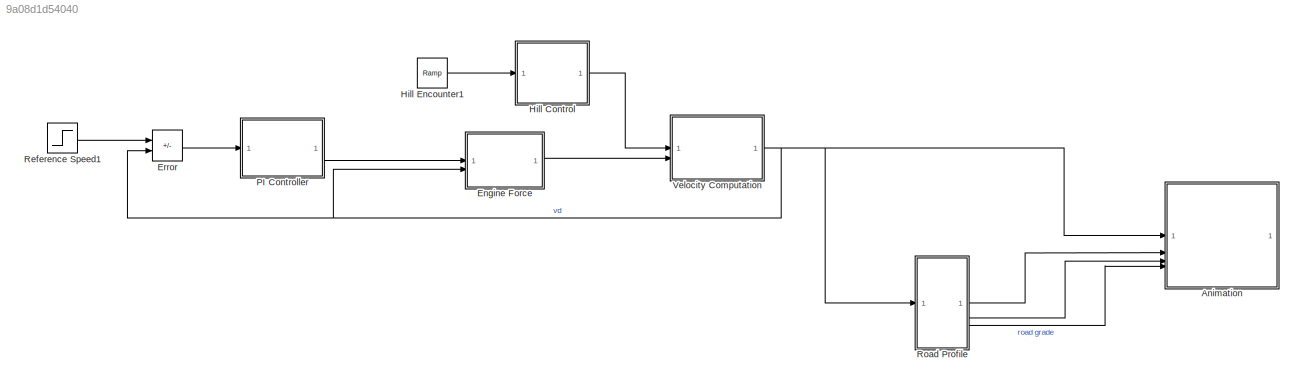
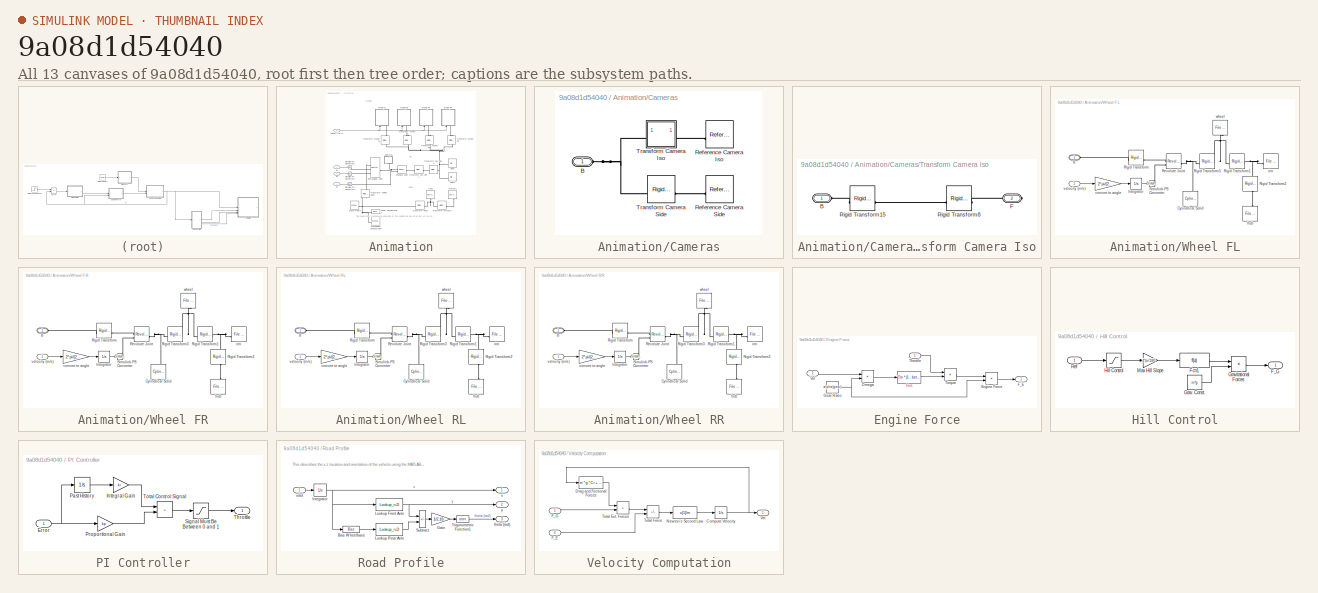
[diagram: thumbnail index - all 13 canvases of the model, root first then tree order]
MODEL slx_9a08d1d54040
KIND model
CONFIG AbsTol = auto
CONFIG EnableMultiTasking = off
CONFIG FixedStep = auto
CONFIG InitFcn = % Initialization code section\n%Control Parameters:\nA=2.4;\nalpha=[40,25,16,12,10];\nbeta=0.4;\nCd=0.32;\nCr=0.01;\ng=9.8;\ngear=3;\nrho=1.3;\ntheta=0;\nTm=190;\nwm=420;\n\n\n%Animation Parameters:\nL = 1000; % Track length (meters)\nR = 40; % Transition radious (meters)\n% ext = 600; % Extra at the end\ndepth = 0.25; % Road depth (meters)\nN = 10e3;\ngrade = deg2rad(30);\n\nroadw = 5; % road width (m)\n\nmarkerFreq = 20...<+862ch>
CONFIG MaxStep = auto
CONFIG MinStep = auto
CONFIG RelTol = 1e-3
CONFIG SampleTimeConstraint = Unconstrained
CONFIG SolverName = VariableStepAuto
CONFIG StartTime = 0.0
CONFIG StopTime = 10
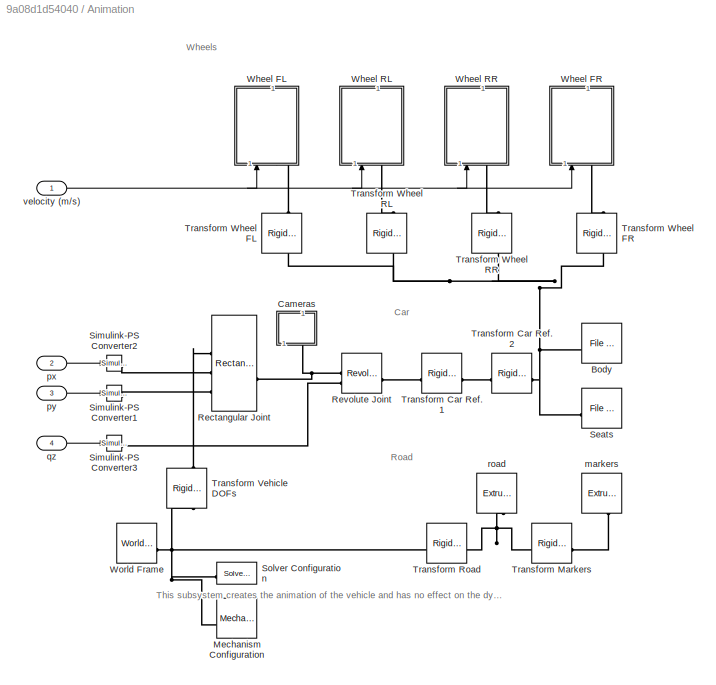
BLOCK [SubSystem] Animation
BLOCK [Reference] Animation/Body  REF=sm_lib/Body Elements/File Solid
  SourceBlock = sm_lib/Body Elements/File Solid
  SourceType = File Solid
BLOCK [SubSystem] Animation/Cameras
  NameLocation = right
BLOCK [PMIOPort] Animation/Cameras/B
  Side = Left
BLOCK [Reference] Animation/Cameras/Reference Camera Iso  REF=sm_lib/Frames and
Transforms/Reference
Frame
  Commented = on
  SourceBlock = sm_lib/Frames and\nTransforms/Reference\nFrame
  SourceType = Reference\nFrame
BLOCK [Reference] Animation/Cameras/Reference Camera Side  REF=sm_lib/Frames and
Transforms/Reference
Frame
  SourceBlock = sm_lib/Frames and\nTransforms/Reference\nFrame
  SourceType = Reference\nFrame
BLOCK [SubSystem] Animation/Cameras/Transform Camera Iso
  Commented = on
BLOCK [PMIOPort] Animation/Cameras/Transform Camera Iso/B
  Side = Left
BLOCK [PMIOPort] Animation/Cameras/Transform Camera Iso/F
  Port = 2
  Side = Right
BLOCK [Reference] Animation/Cameras/Transform Camera Iso/Rigid Transform15  REF=sm_lib/Frames and
Transforms/Rigid
Transform
  SourceBlock = sm_lib/Frames and\nTransforms/Rigid\nTransform
  SourceType = Rigid\nTransform
BLOCK [Reference] Animation/Cameras/Transform Camera Iso/Rigid Transform8  REF=sm_lib/Frames and
Transforms/Rigid
Transform
  SourceBlock = sm_lib/Frames and\nTransforms/Rigid\nTransform
  SourceType = Rigid\nTransform
BLOCK [Reference] Animation/Cameras/Transform Camera Side  REF=sm_lib/Frames and
Transforms/Rigid
Transform
  SourceBlock = sm_lib/Frames and\nTransforms/Rigid\nTransform
  SourceType = Rigid\nTransform
BLOCK [Reference] Animation/Mechanism Configuration  REF=sm_lib/Utilities/Mechanism
Configuration
  NameLocation = right
  SourceBlock = sm_lib/Utilities/Mechanism\nConfiguration
  SourceType = Mechanism\nConfiguration
BLOCK [Reference] Animation/Rectangular Joint  REF=sm_lib/Joints/Rectangular
Joint
  SourceBlock = sm_lib/Joints/Rectangular\nJoint
  SourceType = Rectangular\nJoint
BLOCK [Reference] Animation/Revolute Joint  REF=sm_lib/Joints/Revolute Joint
  SourceBlock = sm_lib/Joints/Revolute Joint
  SourceType = Revolute Joint
BLOCK [Reference] Animation/Seats  REF=sm_lib/Body Elements/File Solid
  SourceBlock = sm_lib/Body Elements/File Solid
  SourceType = File Solid
BLOCK [Reference] Animation/Simulink-PS Converter1  REF=nesl_utility/Simulink-PS
Converter
  SourceBlock = nesl_utility/Simulink-PS\nConverter
  SourceType = Simulink-PS\nConverter
BLOCK [Reference] Animation/Simulink-PS Converter2  REF=nesl_utility/Simulink-PS
Converter
  SourceBlock = nesl_utility/Simulink-PS\nConverter
  SourceType = Simulink-PS\nConverter
BLOCK [Reference] Animation/Simulink-PS Converter3  REF=nesl_utility/Simulink-PS
Converter
  SourceBlock = nesl_utility/Simulink-PS\nConverter
  SourceType = Simulink-PS\nConverter
BLOCK [Reference] Animation/Solver Configuration  REF=nesl_utility/Solver
Configuration
  NameLocation = right
  SourceBlock = nesl_utility/Solver\nConfiguration
  SourceType = Solver\nConfiguration
BLOCK [Reference] Animation/Transform Car Ref. 1  REF=sm_lib/Frames and
Transforms/Rigid
Transform
  SourceBlock = sm_lib/Frames and\nTransforms/Rigid\nTransform
  SourceType = Rigid\nTransform
BLOCK [Reference] Animation/Transform Car Ref. 2  REF=sm_lib/Frames and
Transforms/Rigid
Transform
  SourceBlock = sm_lib/Frames and\nTransforms/Rigid\nTransform
  SourceType = Rigid\nTransform
BLOCK [Reference] Animation/Transform Markers  REF=sm_lib/Frames and
Transforms/Rigid
Transform
  SourceBlock = sm_lib/Frames and\nTransforms/Rigid\nTransform
  SourceType = Rigid\nTransform
BLOCK [Reference] Animation/Transform Road  REF=sm_lib/Frames and
Transforms/Rigid
Transform
  SourceBlock = sm_lib/Frames and\nTransforms/Rigid\nTransform
  SourceType = Rigid\nTransform
BLOCK [Reference] Animation/Transform Vehicle DOFs  REF=sm_lib/Frames and
Transforms/Rigid
Transform
  NameLocation = left
  SourceBlock = sm_lib/Frames and\nTransforms/Rigid\nTransform
  SourceType = Rigid\nTransform
BLOCK [Reference] Animation/Transform Wheel FL  REF=sm_lib/Frames and
Transforms/Rigid
Transform
  NameLocation = left
  SourceBlock = sm_lib/Frames and\nTransforms/Rigid\nTransform
  SourceType = Rigid\nTransform
BLOCK [Reference] Animation/Transform Wheel FR  REF=sm_lib/Frames and
Transforms/Rigid
Transform
  NameLocation = left
  SourceBlock = sm_lib/Frames and\nTransforms/Rigid\nTransform
  SourceType = Rigid\nTransform
BLOCK [Reference] Animation/Transform Wheel RL  REF=sm_lib/Frames and
Transforms/Rigid
Transform
  NameLocation = left
  SourceBlock = sm_lib/Frames and\nTransforms/Rigid\nTransform
  SourceType = Rigid\nTransform
BLOCK [Reference] Animation/Transform Wheel RR  REF=sm_lib/Frames and
Transforms/Rigid
Transform
  NameLocation = left
  SourceBlock = sm_lib/Frames and\nTransforms/Rigid\nTransform
  SourceType = Rigid\nTransform
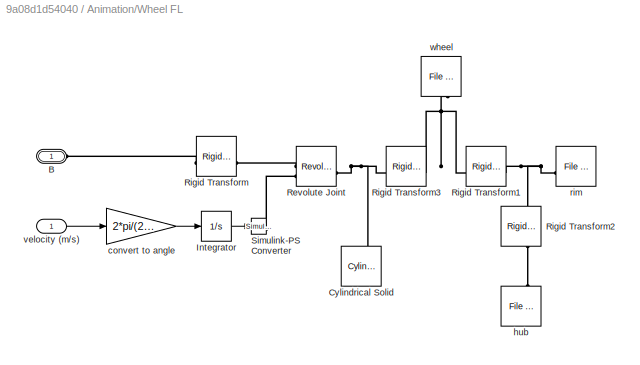
BLOCK [SubSystem] Animation/Wheel FL
  NameLocation = top
BLOCK [PMIOPort] Animation/Wheel FL/B
  Side = Left
BLOCK [Reference] Animation/Wheel FL/Cylindrical Solid  REF=sm_lib/Body Elements/Cylindrical Solid
  NameLocation = right
  SourceBlock = sm_lib/Body Elements/Cylindrical Solid
  SourceType = Cylindrical Solid
BLOCK [Integrator] Animation/Wheel FL/Integrator
BLOCK [Reference] Animation/Wheel FL/Revolute Joint  REF=sm_lib/Joints/Revolute Joint
  SourceBlock = sm_lib/Joints/Revolute Joint
  SourceType = Revolute Joint
BLOCK [Reference] Animation/Wheel FL/Rigid Transform  REF=sm_lib/Frames and
Transforms/Rigid
Transform
  NameLocation = top
  SourceBlock = sm_lib/Frames and\nTransforms/Rigid\nTransform
  SourceType = Rigid\nTransform
BLOCK [Reference] Animation/Wheel FL/Rigid Transform1  REF=sm_lib/Frames and
Transforms/Rigid
Transform
  SourceBlock = sm_lib/Frames and\nTransforms/Rigid\nTransform
  SourceType = Rigid\nTransform
BLOCK [Reference] Animation/Wheel FL/Rigid Transform2  REF=sm_lib/Frames and
Transforms/Rigid
Transform
  NameLocation = left
  SourceBlock = sm_lib/Frames and\nTransforms/Rigid\nTransform
  SourceType = Rigid\nTransform
BLOCK [Reference] Animation/Wheel FL/Rigid Transform3  REF=sm_lib/Frames and
Transforms/Rigid
Transform
  SourceBlock = sm_lib/Frames and\nTransforms/Rigid\nTransform
  SourceType = Rigid\nTransform
BLOCK [Reference] Animation/Wheel FL/Simulink-PS Converter  REF=nesl_utility/Simulink-PS
Converter
  SourceBlock = nesl_utility/Simulink-PS\nConverter
  SourceType = Simulink-PS\nConverter
BLOCK [Gain] Animation/Wheel FL/convert to angle
  Gain = 2*pi/(2.18)
BLOCK [Reference] Animation/Wheel FL/hub  REF=sm_lib/Body Elements/File Solid
  NameLocation = left
  SourceBlock = sm_lib/Body Elements/File Solid
  SourceType = File Solid
BLOCK [Reference] Animation/Wheel FL/rim  REF=sm_lib/Body Elements/File Solid
  NameLocation = right
  SourceBlock = sm_lib/Body Elements/File Solid
  SourceType = File Solid
BLOCK [Inport] Animation/Wheel FL/velocity (m//s)
BLOCK [Reference] Animation/Wheel FL/wheel  REF=sm_lib/Body Elements/File Solid
  NameLocation = top
  SourceBlock = sm_lib/Body Elements/File Solid
  SourceType = File Solid
BLOCK [SubSystem] Animation/Wheel FR
  NameLocation = top
BLOCK [PMIOPort] Animation/Wheel FR/B
  Side = Left
BLOCK [Reference] Animation/Wheel FR/Cylindrical Solid  REF=sm_lib/Body Elements/Cylindrical Solid
  NameLocation = right
  SourceBlock = sm_lib/Body Elements/Cylindrical Solid
  SourceType = Cylindrical Solid
BLOCK [Integrator] Animation/Wheel FR/Integrator
BLOCK [Reference] Animation/Wheel FR/Revolute Joint  REF=sm_lib/Joints/Revolute Joint
  SourceBlock = sm_lib/Joints/Revolute Joint
  SourceType = Revolute Joint
BLOCK [Reference] Animation/Wheel FR/Rigid Transform  REF=sm_lib/Frames and
Transforms/Rigid
Transform
  NameLocation = top
  SourceBlock = sm_lib/Frames and\nTransforms/Rigid\nTransform
  SourceType = Rigid\nTransform
BLOCK [Reference] Animation/Wheel FR/Rigid Transform1  REF=sm_lib/Frames and
Transforms/Rigid
Transform
  SourceBlock = sm_lib/Frames and\nTransforms/Rigid\nTransform
  SourceType = Rigid\nTransform
BLOCK [Reference] Animation/Wheel FR/Rigid Transform2  REF=sm_lib/Frames and
Transforms/Rigid
Transform
  NameLocation = left
  SourceBlock = sm_lib/Frames and\nTransforms/Rigid\nTransform
  SourceType = Rigid\nTransform
BLOCK [Reference] Animation/Wheel FR/Rigid Transform3  REF=sm_lib/Frames and
Transforms/Rigid
Transform
  SourceBlock = sm_lib/Frames and\nTransforms/Rigid\nTransform
  SourceType = Rigid\nTransform
BLOCK [Reference] Animation/Wheel FR/Simulink-PS Converter  REF=nesl_utility/Simulink-PS
Converter
  SourceBlock = nesl_utility/Simulink-PS\nConverter
  SourceType = Simulink-PS\nConverter
BLOCK [Gain] Animation/Wheel FR/convert to angle
  Gain = 2*pi/(2.18)
BLOCK [Reference] Animation/Wheel FR/hub  REF=sm_lib/Body Elements/File Solid
  NameLocation = left
  SourceBlock = sm_lib/Body Elements/File Solid
  SourceType = File Solid
BLOCK [Reference] Animation/Wheel FR/rim  REF=sm_lib/Body Elements/File Solid
  NameLocation = right
  SourceBlock = sm_lib/Body Elements/File Solid
  SourceType = File Solid
BLOCK [Inport] Animation/Wheel FR/velocity (m//s)
BLOCK [Reference] Animation/Wheel FR/wheel  REF=sm_lib/Body Elements/File Solid
  NameLocation = top
  SourceBlock = sm_lib/Body Elements/File Solid
  SourceType = File Solid
BLOCK [SubSystem] Animation/Wheel RL
  NameLocation = top
BLOCK [PMIOPort] Animation/Wheel RL/B
  Side = Left
BLOCK [Reference] Animation/Wheel RL/Cylindrical Solid  REF=sm_lib/Body Elements/Cylindrical Solid
  NameLocation = right
  SourceBlock = sm_lib/Body Elements/Cylindrical Solid
  SourceType = Cylindrical Solid
BLOCK [Integrator] Animation/Wheel RL/Integrator
BLOCK [Reference] Animation/Wheel RL/Revolute Joint  REF=sm_lib/Joints/Revolute Joint
  SourceBlock = sm_lib/Joints/Revolute Joint
  SourceType = Revolute Joint
BLOCK [Reference] Animation/Wheel RL/Rigid Transform  REF=sm_lib/Frames and
Transforms/Rigid
Transform
  NameLocation = top
  SourceBlock = sm_lib/Frames and\nTransforms/Rigid\nTransform
  SourceType = Rigid\nTransform
BLOCK [Reference] Animation/Wheel RL/Rigid Transform1  REF=sm_lib/Frames and
Transforms/Rigid
Transform
  SourceBlock = sm_lib/Frames and\nTransforms/Rigid\nTransform
  SourceType = Rigid\nTransform
BLOCK [Reference] Animation/Wheel RL/Rigid Transform2  REF=sm_lib/Frames and
Transforms/Rigid
Transform
  NameLocation = left
  SourceBlock = sm_lib/Frames and\nTransforms/Rigid\nTransform
  SourceType = Rigid\nTransform
BLOCK [Reference] Animation/Wheel RL/Rigid Transform3  REF=sm_lib/Frames and
Transforms/Rigid
Transform
  SourceBlock = sm_lib/Frames and\nTransforms/Rigid\nTransform
  SourceType = Rigid\nTransform
BLOCK [Reference] Animation/Wheel RL/Simulink-PS Converter  REF=nesl_utility/Simulink-PS
Converter
  SourceBlock = nesl_utility/Simulink-PS\nConverter
  SourceType = Simulink-PS\nConverter
BLOCK [Gain] Animation/Wheel RL/convert to angle
  Gain = 2*pi/(2.18)
BLOCK [Reference] Animation/Wheel RL/hub  REF=sm_lib/Body Elements/File Solid
  NameLocation = left
  SourceBlock = sm_lib/Body Elements/File Solid
  SourceType = File Solid
BLOCK [Reference] Animation/Wheel RL/rim  REF=sm_lib/Body Elements/File Solid
  NameLocation = right
  SourceBlock = sm_lib/Body Elements/File Solid
  SourceType = File Solid
BLOCK [Inport] Animation/Wheel RL/velocity (m//s)
BLOCK [Reference] Animation/Wheel RL/wheel  REF=sm_lib/Body Elements/File Solid
  NameLocation = top
  SourceBlock = sm_lib/Body Elements/File Solid
  SourceType = File Solid
BLOCK [SubSystem] Animation/Wheel RR
  NameLocation = top
BLOCK [PMIOPort] Animation/Wheel RR/B
  Side = Left
BLOCK [Reference] Animation/Wheel RR/Cylindrical Solid  REF=sm_lib/Body Elements/Cylindrical Solid
  NameLocation = right
  SourceBlock = sm_lib/Body Elements/Cylindrical Solid
  SourceType = Cylindrical Solid
BLOCK [Integrator] Animation/Wheel RR/Integrator
BLOCK [Reference] Animation/Wheel RR/Revolute Joint  REF=sm_lib/Joints/Revolute Joint
  SourceBlock = sm_lib/Joints/Revolute Joint
  SourceType = Revolute Joint
BLOCK [Reference] Animation/Wheel RR/Rigid Transform  REF=sm_lib/Frames and
Transforms/Rigid
Transform
  NameLocation = top
  SourceBlock = sm_lib/Frames and\nTransforms/Rigid\nTransform
  SourceType = Rigid\nTransform
BLOCK [Reference] Animation/Wheel RR/Rigid Transform1  REF=sm_lib/Frames and
Transforms/Rigid
Transform
  SourceBlock = sm_lib/Frames and\nTransforms/Rigid\nTransform
  SourceType = Rigid\nTransform
BLOCK [Reference] Animation/Wheel RR/Rigid Transform2  REF=sm_lib/Frames and
Transforms/Rigid
Transform
  NameLocation = left
  SourceBlock = sm_lib/Frames and\nTransforms/Rigid\nTransform
  SourceType = Rigid\nTransform
BLOCK [Reference] Animation/Wheel RR/Rigid Transform3  REF=sm_lib/Frames and
Transforms/Rigid
Transform
  SourceBlock = sm_lib/Frames and\nTransforms/Rigid\nTransform
  SourceType = Rigid\nTransform
BLOCK [Reference] Animation/Wheel RR/Simulink-PS Converter  REF=nesl_utility/Simulink-PS
Converter
  SourceBlock = nesl_utility/Simulink-PS\nConverter
  SourceType = Simulink-PS\nConverter
BLOCK [Gain] Animation/Wheel RR/convert to angle
  Gain = 2*pi/(2.18)
BLOCK [Reference] Animation/Wheel RR/hub  REF=sm_lib/Body Elements/File Solid
  NameLocation = left
  SourceBlock = sm_lib/Body Elements/File Solid
  SourceType = File Solid
BLOCK [Reference] Animation/Wheel RR/rim  REF=sm_lib/Body Elements/File Solid
  NameLocation = right
  SourceBlock = sm_lib/Body Elements/File Solid
  SourceType = File Solid
BLOCK [Inport] Animation/Wheel RR/velocity (m//s)
BLOCK [Reference] Animation/Wheel RR/wheel  REF=sm_lib/Body Elements/File Solid
  NameLocation = top
  SourceBlock = sm_lib/Body Elements/File Solid
  SourceType = File Solid
BLOCK [Reference] Animation/World Frame  REF=sm_lib/Frames and
Transforms/World Frame
  SourceBlock = sm_lib/Frames and\nTransforms/World Frame
  SourceType = World Frame
BLOCK [Reference] Animation/markers  REF=sm_lib/Body Elements/Extruded Solid
  NameLocation = left
  SourceBlock = sm_lib/Body Elements/Extruded Solid
  SourceType = Extruded Solid
BLOCK [Inport] Animation/px
  Port = 2
BLOCK [Inport] Animation/py
  Port = 3
BLOCK [Inport] Animation/qz
  Port = 4
BLOCK [Reference] Animation/road  REF=sm_lib/Body Elements/Extruded Solid
  NameLocation = left
  SourceBlock = sm_lib/Body Elements/Extruded Solid
  SourceType = Extruded Solid
BLOCK [Inport] Animation/velocity (m//s)
BLOCK [SubSystem] Engine Force
BLOCK [Product] Engine Force/Engine Force
  Inputs = **
BLOCK [Outport] Engine Force/F_E
BLOCK [Fcn] Engine Force/Fcn
  Expr = Tm * (1 - beta * (u[1]/wm - 1)^2)
BLOCK [Constant] Engine Force/Gear Ratio
  Value = alpha(gear)
BLOCK [Product] Engine Force/Omega
  RndMeth = Zero
BLOCK [Inport] Engine Force/Throttle
BLOCK [Product] Engine Force/Torque
  RndMeth = Zero
BLOCK [Inport] Engine Force/Vel
  Port = 2
BLOCK [Sum] Error
  IconShape = rectangular
  Inputs = +-
BLOCK [SubSystem] Hill Control
BLOCK [Outport] Hill Control/F_G
BLOCK [Fcn] Hill Control/Fcn1
BLOCK [Constant] Hill Control/Grav. Const.
  Value = m*g
BLOCK [Product] Hill Control/Gravitational Forces
  RndMeth = Zero
BLOCK [Saturate] Hill Control/Hill Control
  LowerLimit = 0
  UpperLimit = 1
BLOCK [Gain] Hill Control/Max Hill Slope
  Gain = 4*pi/180
BLOCK [Inport] Hill Control/Ref
BLOCK [Reference] Hill Encounter1  REF=simulink/Sources/Ramp
  SourceBlock = simulink/Sources/Ramp
  SourceType = Ramp
BLOCK [SubSystem] PI Controller
BLOCK [Inport] PI Controller/Error
BLOCK [Gain] PI Controller/Integral Gain
  Gain = ki
BLOCK [Integrator] PI Controller/Past History
  InitialCondition = 1
BLOCK [Gain] PI Controller/Proportional Gain
  Gain = kp
BLOCK [Saturate] PI Controller/Signal Must Be Between 0 and 1
  LowerLimit = 0
  UpperLimit = 1
BLOCK [Outport] PI Controller/Throttle
BLOCK [Sum] PI Controller/Total Control Signal
  IconShape = rectangular
BLOCK [Step] Reference Speed1
  After = 30
  Before = 20
  SampleTime = 0
  Time = 20
BLOCK [SubSystem] Road Profile
BLOCK [Bias] Road Profile/Bias Wheelbase
  Bias = -2.18
  SaturateOnIntegerOverflow = off
BLOCK [Gain] Road Profile/Gain
  Gain = 1/2.18
BLOCK [Integrator] Road Profile/Integrator
BLOCK [Lookup_n-D] Road Profile/Lookup Front Axle
  BreakpointsForDimension1 = xc
  InputPortMap = u0
  InternalRulePriority = Speed
  NumberOfTableDimensions = 1
  RndMeth = Simplest
  Table = yc
BLOCK [Lookup_n-D] Road Profile/Lookup Rear Axle
  BreakpointsForDimension1 = xc
  InputPortMap = u0
  InternalRulePriority = Speed
  NumberOfTableDimensions = 1
  RndMeth = Simplest
  Table = yc
BLOCK [Sum] Road Profile/Subtract
  IconShape = rectangular
  Inputs = +-
BLOCK [Trigonometry] Road Profile/Trigonometric Function1
  Operator = atan
BLOCK [Outport] Road Profile/theta (rad)
  Port = 3
BLOCK [Outport] Road Profile/x
BLOCK [Inport] Road Profile/xdot
BLOCK [Outport] Road Profile/y
  Port = 2
BLOCK [SubSystem] Velocity Computation
BLOCK [Integrator] Velocity Computation/Compute Velocity
  InitialCondition = 20
BLOCK [Fcn] Velocity Computation/Drag and Frictional Forces
  Expr = m * g * Cr + 0.5 * rho * Cd * A * (u[1])^2
BLOCK [Inport] Velocity Computation/F_E
  Port = 2
BLOCK [Inport] Velocity Computation/F_G
BLOCK [Fcn] Velocity Computation/Newton's Second Law
  Expr = u[1]/m
BLOCK [Sum] Velocity Computation/Total Ext. Forces
  IconShape = rectangular
BLOCK [Sum] Velocity Computation/Total Force
  IconShape = rectangular
  Inputs = -+
BLOCK [Outport] Velocity Computation/Vel
ANNOTATION Animation: This subsystem creates the animation of the vehicle and has no effect on the dynamics.
ANNOTATION Animation: Car
ANNOTATION Animation: Road
ANNOTATION Animation: Wheels
ANNOTATION Road Profile: This describes the x-z location and orientation of the vehicle using the MATLAB generated road (generated in the mask initialization)
LINE Animation/Wheel FL/Integrator:1 -> Animation/Wheel FL/Simulink-PS Converter:1
LINE Animation/Wheel FL/convert to angle:1 -> Animation/Wheel FL/Integrator:1
LINE Animation/Wheel FL/velocity (m//s):1 -> Animation/Wheel FL/convert to angle:1
LINE Animation/Wheel FR/Integrator:1 -> Animation/Wheel FR/Simulink-PS Converter:1
LINE Animation/Wheel FR/convert to angle:1 -> Animation/Wheel FR/Integrator:1
LINE Animation/Wheel FR/velocity (m//s):1 -> Animation/Wheel FR/convert to angle:1
LINE Animation/Wheel RL/Integrator:1 -> Animation/Wheel RL/Simulink-PS Converter:1
LINE Animation/Wheel RL/convert to angle:1 -> Animation/Wheel RL/Integrator:1
LINE Animation/Wheel RL/velocity (m//s):1 -> Animation/Wheel RL/convert to angle:1
LINE Animation/Wheel RR/Integrator:1 -> Animation/Wheel RR/Simulink-PS Converter:1
LINE Animation/Wheel RR/convert to angle:1 -> Animation/Wheel RR/Integrator:1
LINE Animation/Wheel RR/velocity (m//s):1 -> Animation/Wheel RR/convert to angle:1
LINE Animation/px:1 -> Animation/Simulink-PS Converter2:1
LINE Animation/py:1 -> Animation/Simulink-PS Converter1:1
LINE Animation/qz:1 -> Animation/Simulink-PS Converter3:1
NET Animation/velocity (m//s):1 -> Animation/Wheel FL:1, Animation/Wheel FR:1, Animation/Wheel RL:1, Animation/Wheel RR:1
LINE Engine Force/Engine Force:1 -> Engine Force/F_E:1
LINE Engine Force/Fcn:1 -> Engine Force/Torque:2
NET Engine Force/Gear Ratio:1 -> Engine Force/Engine Force:2, Engine Force/Omega:2
LINE Engine Force/Omega:1 -> Engine Force/Fcn:1
LINE Engine Force/Throttle:1 -> Engine Force/Torque:1
LINE Engine Force/Torque:1 -> Engine Force/Engine Force:1
LINE Engine Force/Vel:1 -> Engine Force/Omega:1
LINE Engine Force:1 -> Velocity Computation:2
LINE Error:1 -> PI Controller:1
LINE Hill Control/Fcn1:1 -> Hill Control/Gravitational Forces:1
LINE Hill Control/Grav. Const.:1 -> Hill Control/Gravitational Forces:2
LINE Hill Control/Gravitational Forces:1 -> Hill Control/F_G:1
LINE Hill Control/Hill Control:1 -> Hill Control/Max Hill Slope:1
LINE Hill Control/Max Hill Slope:1 -> Hill Control/Fcn1:1
LINE Hill Control/Ref:1 -> Hill Control/Hill Control:1
LINE Hill Control:1 -> Velocity Computation:1
LINE Hill Encounter1:1 -> Hill Control:1
NET PI Controller/Error:1 -> PI Controller/Past History:1, PI Controller/Proportional Gain:1
LINE PI Controller/Integral Gain:1 -> PI Controller/Total Control Signal:1
LINE PI Controller/Past History:1 -> PI Controller/Integral Gain:1
LINE PI Controller/Proportional Gain:1 -> PI Controller/Total Control Signal:2
LINE PI Controller/Signal Must Be Between 0 and 1:1 -> PI Controller/Throttle:1
LINE PI Controller/Total Control Signal:1 -> PI Controller/Signal Must Be Between 0 and 1:1
LINE PI Controller:1 -> Engine Force:1
LINE Reference Speed1:1 -> Error:1
LINE Road Profile/Bias Wheelbase:1 -> Road Profile/Lookup Rear Axle:1
LINE Road Profile/Gain:1 -> Road Profile/Trigonometric Function1:1
NET Road Profile/Integrator:1 -> Road Profile/Bias Wheelbase:1, Road Profile/Lookup Front Axle:1, Road Profile/x:1
NET Road Profile/Lookup Front Axle:1 -> Road Profile/Subtract:1, Road Profile/y:1
LINE Road Profile/Lookup Rear Axle:1 -> Road Profile/Subtract:2
LINE Road Profile/Subtract:1 -> Road Profile/Gain:1
LINE Road Profile/Trigonometric Function1:1 -> Road Profile/theta (rad):1
LINE Road Profile/xdot:1 -> Road Profile/Integrator:1
LINE Road Profile:1 -> Animation:2
LINE Road Profile:2 -> Animation:3
LINE Road Profile:3 -> Animation:4
NET Velocity Computation/Compute Velocity:1 -> Velocity Computation/Drag and Frictional Forces:1, Velocity Computation/Vel:1
LINE Velocity Computation/Drag and Frictional Forces:1 -> Velocity Computation/Total Ext. Forces:1
LINE Velocity Computation/F_E:1 -> Velocity Computation/Total Force:2
LINE Velocity Computation/F_G:1 -> Velocity Computation/Total Ext. Forces:2
LINE Velocity Computation/Newton's Second Law:1 -> Velocity Computation/Compute Velocity:1
LINE Velocity Computation/Total Ext. Forces:1 -> Velocity Computation/Total Force:1
LINE Velocity Computation/Total Force:1 -> Velocity Computation/Newton's Second Law:1
NET Velocity Computation:1 -> Animation:1, Engine Force:2, Error:2, Road Profile:1
PNET net1: Animation/Body:RConn1 -- Animation/Seats:RConn1 -- Animation/Transform Car Ref. 2:RConn1 -- Animation/Transform Wheel FL:LConn1 -- Animation/Transform Wheel FR:LConn1 -- Animation/Transform Wheel RL:LConn1 -- Animation/Transform Wheel RR:LConn1
PNET net2: Animation/Cameras/B:RConn1 -- Animation/Cameras/Transform Camera Iso:LConn1 -- Animation/Cameras/Transform Camera Side:LConn1
PLINE Animation/Cameras/Reference Camera Iso:RConn1 -- Animation/Cameras/Transform Camera Iso:RConn1
PLINE Animation/Cameras/Reference Camera Side:RConn1 -- Animation/Cameras/Transform Camera Side:RConn1
PLINE Animation/Cameras/Transform Camera Iso/B:RConn1 -- Animation/Cameras/Transform Camera Iso/Rigid Transform15:RConn1
PLINE Animation/Cameras/Transform Camera Iso/F:RConn1 -- Animation/Cameras/Transform Camera Iso/Rigid Transform8:RConn1
PLINE Animation/Cameras/Transform Camera Iso/Rigid Transform15:LConn1 -- Animation/Cameras/Transform Camera Iso/Rigid Transform8:LConn1
PNET net3: Animation/Cameras:LConn1 -- Animation/Rectangular Joint:RConn1 -- Animation/Revolute Joint:LConn1
PNET net4: Animation/Mechanism Configuration:RConn1 -- Animation/Solver Configuration:RConn1 -- Animation/Transform Road:LConn1 -- Animation/Transform Vehicle DOFs:LConn1 -- Animation/World Frame:RConn1
PLINE Animation/Rectangular Joint:LConn1 -- Animation/Transform Vehicle DOFs:RConn1
PLINE Animation/Rectangular Joint:LConn2 -- Animation/Simulink-PS Converter2:RConn1
PLINE Animation/Rectangular Joint:LConn3 -- Animation/Simulink-PS Converter1:RConn1
PLINE Animation/Revolute Joint:LConn2 -- Animation/Simulink-PS Converter3:RConn1
PLINE Animation/Revolute Joint:RConn1 -- Animation/Transform Car Ref. 1:RConn1
PLINE Animation/Transform Car Ref. 1:LConn1 -- Animation/Transform Car Ref. 2:LConn1
PNET net5: Animation/Transform Markers:LConn1 -- Animation/Transform Road:RConn1 -- Animation/road:RConn1
PLINE Animation/Transform Markers:RConn1 -- Animation/markers:RConn1
PLINE Animation/Transform Wheel FL:RConn1 -- Animation/Wheel FL:LConn1
PLINE Animation/Transform Wheel FR:RConn1 -- Animation/Wheel FR:LConn1
PLINE Animation/Transform Wheel RL:RConn1 -- Animation/Wheel RL:LConn1
PLINE Animation/Transform Wheel RR:RConn1 -- Animation/Wheel RR:LConn1
PLINE Animation/Wheel FL/B:RConn1 -- Animation/Wheel FL/Rigid Transform:RConn1
PNET net6: Animation/Wheel FL/Cylindrical Solid:RConn1 -- Animation/Wheel FL/Revolute Joint:RConn1 -- Animation/Wheel FL/Rigid Transform3:LConn1
PLINE Animation/Wheel FL/Revolute Joint:LConn1 -- Animation/Wheel FL/Rigid Transform:LConn1
PLINE Animation/Wheel FL/Revolute Joint:LConn2 -- Animation/Wheel FL/Simulink-PS Converter:RConn1
PNET net7: Animation/Wheel FL/Rigid Transform1:LConn1 -- Animation/Wheel FL/Rigid Transform3:RConn1 -- Animation/Wheel FL/wheel:RConn1
PNET net8: Animation/Wheel FL/Rigid Transform1:RConn1 -- Animation/Wheel FL/Rigid Transform2:LConn1 -- Animation/Wheel FL/rim:RConn1
PLINE Animation/Wheel FL/Rigid Transform2:RConn1 -- Animation/Wheel FL/hub:RConn1
PLINE Animation/Wheel FR/B:RConn1 -- Animation/Wheel FR/Rigid Transform:RConn1
PNET net9: Animation/Wheel FR/Cylindrical Solid:RConn1 -- Animation/Wheel FR/Revolute Joint:RConn1 -- Animation/Wheel FR/Rigid Transform3:LConn1
PLINE Animation/Wheel FR/Revolute Joint:LConn1 -- Animation/Wheel FR/Rigid Transform:LConn1
PLINE Animation/Wheel FR/Revolute Joint:LConn2 -- Animation/Wheel FR/Simulink-PS Converter:RConn1
PNET net10: Animation/Wheel FR/Rigid Transform1:LConn1 -- Animation/Wheel FR/Rigid Transform3:RConn1 -- Animation/Wheel FR/wheel:RConn1
PNET net11: Animation/Wheel FR/Rigid Transform1:RConn1 -- Animation/Wheel FR/Rigid Transform2:LConn1 -- Animation/Wheel FR/rim:RConn1
PLINE Animation/Wheel FR/Rigid Transform2:RConn1 -- Animation/Wheel FR/hub:RConn1
PLINE Animation/Wheel RL/B:RConn1 -- Animation/Wheel RL/Rigid Transform:RConn1
PNET net12: Animation/Wheel RL/Cylindrical Solid:RConn1 -- Animation/Wheel RL/Revolute Joint:RConn1 -- Animation/Wheel RL/Rigid Transform3:LConn1
PLINE Animation/Wheel RL/Revolute Joint:LConn1 -- Animation/Wheel RL/Rigid Transform:LConn1
PLINE Animation/Wheel RL/Revolute Joint:LConn2 -- Animation/Wheel RL/Simulink-PS Converter:RConn1
PNET net13: Animation/Wheel RL/Rigid Transform1:LConn1 -- Animation/Wheel RL/Rigid Transform3:RConn1 -- Animation/Wheel RL/wheel:RConn1
PNET net14: Animation/Wheel RL/Rigid Transform1:RConn1 -- Animation/Wheel RL/Rigid Transform2:LConn1 -- Animation/Wheel RL/rim:RConn1
PLINE Animation/Wheel RL/Rigid Transform2:RConn1 -- Animation/Wheel RL/hub:RConn1
PLINE Animation/Wheel RR/B:RConn1 -- Animation/Wheel RR/Rigid Transform:RConn1
PNET net15: Animation/Wheel RR/Cylindrical Solid:RConn1 -- Animation/Wheel RR/Revolute Joint:RConn1 -- Animation/Wheel RR/Rigid Transform3:LConn1
PLINE Animation/Wheel RR/Revolute Joint:LConn1 -- Animation/Wheel RR/Rigid Transform:LConn1
PLINE Animation/Wheel RR/Revolute Joint:LConn2 -- Animation/Wheel RR/Simulink-PS Converter:RConn1
PNET net16: Animation/Wheel RR/Rigid Transform1:LConn1 -- Animation/Wheel RR/Rigid Transform3:RConn1 -- Animation/Wheel RR/wheel:RConn1
PNET net17: Animation/Wheel RR/Rigid Transform1:RConn1 -- Animation/Wheel RR/Rigid Transform2:LConn1 -- Animation/Wheel RR/rim:RConn1
PLINE Animation/Wheel RR/Rigid Transform2:RConn1 -- Animation/Wheel RR/hub:RConn1
note: NET lines group one-source signal fan-out (src -> all destinations, sorted); 1:1 wires keep LINE; PNET lines group multi-terminal physical nets as a canonical sorted terminal list (undirected conserving connections); 2-terminal nets keep the pairwise PLINE form
